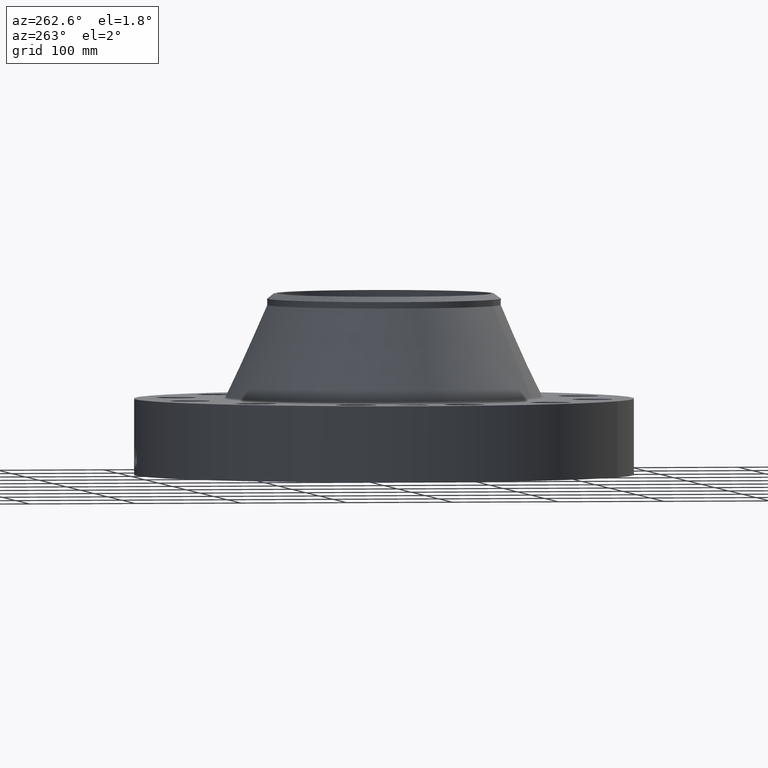
[diagram: clean part render]
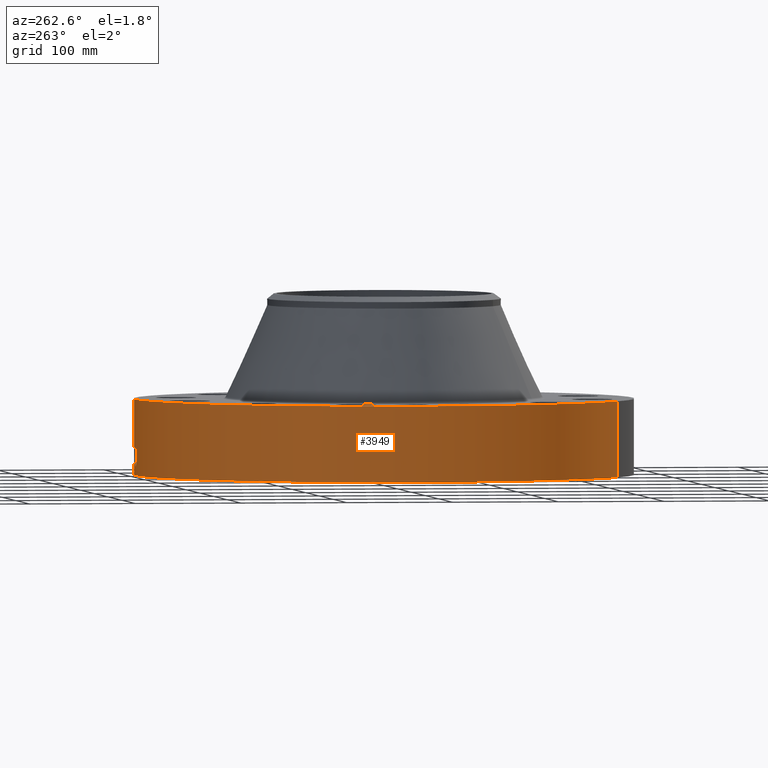
[diagram: same view with one face highlighted and labeled with its STEP entity id]
A machine part, auxiliary view. The second image highlights one B-rep face of the part: STEP entity #3949.
In plain terms, the highlighted cylindrical surface (partial cylindrical patch) has radius 234.95 mm, axis along (0, 0, -1).
Its self-contained STEP definition (entity closure, byte-faithful):
#2927=AXIS2_PLACEMENT_3D('Circle Axis2P3D',#2925,#2926,$) ;
#3835=AXIS2_PLACEMENT_3D('Cylinder Axis2P3D',#3832,#3833,#3834) ;
#3839=AXIS2_PLACEMENT_3D('Circle Axis2P3D',#3837,#3838,$) ;
#2920=CARTESIAN_POINT('Vertex',(4.43468623211,8.11763869752,2.81200000001)) ;
#2922=CARTESIAN_POINT('Vertex',(-4.43468623211,-8.11763869752,2.81200000001)) ;
#2925=CARTESIAN_POINT('Axis2P3D Location',(0.,0.,2.81200000001)) ;
#3832=CARTESIAN_POINT('Axis2P3D Location',(0.,0.,3.34600000001)) ;
#3837=CARTESIAN_POINT('Axis2P3D Location',(0.,0.,1.1189649382E-015)) ;
#3841=CARTESIAN_POINT('Vertex',(-4.43468623211,-8.11763869752,1.1189649382E-015)) ;
#3843=CARTESIAN_POINT('Vertex',(4.43468623211,8.11763869752,1.1189649382E-015)) ;
#3846=CARTESIAN_POINT('Line Origine',(-4.43468623211,-8.11763869752,1.40600000001)) ;
#3851=CARTESIAN_POINT('Line Origine',(4.43468623211,8.11763869752,1.40600000001)) ;
#3863=CARTESIAN_POINT('Control Point',(-0.0577125961647,9.24981995808,1.09937874994)) ;
#3864=CARTESIAN_POINT('Control Point',(-0.0388833608077,9.24993743973,1.10249288476)) ;
#3865=CARTESIAN_POINT('Control Point',(-0.0198013897596,9.24999849469,1.10407982415)) ;
#3866=CARTESIAN_POINT('Control Point',(-0.000716156149236,9.24999997231,1.10411849907)) ;
#3867=CARTESIAN_POINT('Vertex',(-0.0576991467382,9.24982029975,1.09938125797)) ;
#3869=CARTESIAN_POINT('Vertex',(-0.000716038479745,9.24999997232,1.10411850952)) ;
#3873=CARTESIAN_POINT('Control Point',(-0.0576990432169,9.24982004263,1.09938068475)) ;
#3874=CARTESIAN_POINT('Control Point',(-0.0972391380561,9.24957339722,1.09460359016)) ;
#3875=CARTESIAN_POINT('Control Point',(-0.136042516295,9.24906823357,1.08261771386)) ;
#3876=CARTESIAN_POINT('Control Point',(-0.171684024295,9.24840659771,1.06429687549)) ;
#3877=CARTESIAN_POINT('Vertex',(-0.171684024295,9.24840659771,1.06429687549)) ;
#3881=CARTESIAN_POINT('Control Point',(-0.0303581087273,9.24995018289,0.341140537551)) ;
#3882=CARTESIAN_POINT('Control Point',(-0.0866897584974,9.2497653038,0.348299310546)) ;
#3883=CARTESIAN_POINT('Control Point',(-0.141430115601,9.24915682216,0.365910087449)) ;
#3884=CARTESIAN_POINT('Control Point',(-0.191853008815,9.2481803912,0.393474885052)) ;
#3885=CARTESIAN_POINT('Control Point',(-0.265091257344,9.24632230319,0.452891927386)) ;
#3886=CARTESIAN_POINT('Control Point',(-0.317152117048,9.24459179649,0.529282466423)) ;
#3887=CARTESIAN_POINT('Control Point',(-0.334231000889,9.24397520688,0.561953293361)) ;
#3888=CARTESIAN_POINT('Control Point',(-0.368164840035,9.24269550023,0.650206623084)) ;
#3889=CARTESIAN_POINT('Control Point',(-0.375212250425,9.24237778093,0.744443133943)) ;
#3890=CARTESIAN_POINT('Control Point',(-0.369077403117,9.24264042873,0.801998466236)) ;
#3891=CARTESIAN_POINT('Control Point',(-0.339634178712,9.24384245099,0.901085591186)) ;
#3892=CARTESIAN_POINT('Control Point',(-0.280074262204,9.2458215954,0.984223833656)) ;
#3893=CARTESIAN_POINT('Control Point',(-0.248105873876,9.24677344311,1.01684017513)) ;
#3894=CARTESIAN_POINT('Control Point',(-0.21151349785,9.24766721798,1.0438232927)) ;
#3895=CARTESIAN_POINT('Control Point',(-0.171684024295,9.24840659771,1.06429687549)) ;
#3896=CARTESIAN_POINT('Vertex',(-0.0303581087272,9.24995018289,0.341140537551)) ;
#3900=CARTESIAN_POINT('Control Point',(-0.0303581087273,9.24995018289,0.341140537551)) ;
#3901=CARTESIAN_POINT('Control Point',(-0.020233011113,9.24998341321,0.340867615171)) ;
#3902=CARTESIAN_POINT('Control Point',(-0.0101025865813,9.25000000302,0.340945815472)) ;
#3903=CARTESIAN_POINT('Control Point',(2.72878351164E-006,9.25000000004,0.341374667805)) ;
#3904=CARTESIAN_POINT('Vertex',(2.72878353618E-006,9.25000000004,0.341374667805)) ;
#3908=CARTESIAN_POINT('Control Point',(0.193198543476,9.24798217578,0.396362555986)) ;
#3909=CARTESIAN_POINT('Control Point',(0.149227382229,9.2489007723,0.371425951044)) ;
#3910=CARTESIAN_POINT('Control Point',(0.101161803739,9.24962696138,0.35356672624)) ;
#3911=CARTESIAN_POINT('Control Point',(0.0508219078913,9.24999998504,0.343531348827)) ;
#3912=CARTESIAN_POINT('Control Point',(2.72878352805E-006,9.25000000004,0.341374667805)) ;
#3913=CARTESIAN_POINT('Vertex',(0.193198543476,9.24798217578,0.396362555986)) ;
#3917=CARTESIAN_POINT('Control Point',(0.193198543476,9.24798217578,0.396362555986)) ;
#3918=CARTESIAN_POINT('Control Point',(0.222182253513,9.24737668039,0.412799587067)) ;
#3919=CARTESIAN_POINT('Control Point',(0.249503039003,9.24669232964,0.432118782466)) ;
#3920=CARTESIAN_POINT('Control Point',(0.27475602424,9.24596347858,0.454146093832)) ;
#3921=CARTESIAN_POINT('Control Point',(0.341566372645,9.24382713184,0.525930911389)) ;
#3922=CARTESIAN_POINT('Control Point',(0.384141031167,9.24205912221,0.615687982996)) ;
#3923=CARTESIAN_POINT('Control Point',(0.399122340637,9.2413711073,0.680114143546)) ;
#3924=CARTESIAN_POINT('Control Point',(0.399880486978,9.24137894225,0.794466480263)) ;
#3925=CARTESIAN_POINT('Control Point',(0.359702757099,9.24303009304,0.899211226192)) ;
#3926=CARTESIAN_POINT('Control Point',(0.3354039017,9.24398189379,0.940688840859)) ;
#3927=CARTESIAN_POINT('Control Point',(0.266593442439,9.24636786144,1.02431007212)) ;
#3928=CARTESIAN_POINT('Control Point',(0.173832340737,9.24860314802,1.07884677027)) ;
#3929=CARTESIAN_POINT('Control Point',(0.11691293498,9.24954506219,1.0986182987)) ;
#3930=CARTESIAN_POINT('Control Point',(0.0580168751513,9.25000016226,1.10699864516)) ;
#3931=CARTESIAN_POINT('Control Point',(-2.58579355524E-005,9.25,1.10415298432)) ;
#3932=CARTESIAN_POINT('Vertex',(-2.58579355387E-005,9.25,1.10415298432)) ;
#3936=CARTESIAN_POINT('Control Point',(-0.000716038469635,9.24999997232,1.1041185095)) ;
#3937=CARTESIAN_POINT('Control Point',(-0.000370972295635,9.24999999904,1.10413606441)) ;
#3938=CARTESIAN_POINT('Control Point',(-2.58579412438E-005,9.25,1.10415298432)) ;
#2926=DIRECTION('Axis2P3D Direction',(0.,0.,-0.0393700787402)) ;
#3833=DIRECTION('Axis2P3D Direction',(0.,0.,-0.0393700787402)) ;
#3834=DIRECTION('Axis2P3D XDirection',(0.0188750212049,0.0345504945626,0.)) ;
#3838=DIRECTION('Axis2P3D Direction',(0.,0.,-0.0393700787402)) ;
#3847=DIRECTION('Vector Direction',(0.,0.,-0.0393700787402)) ;
#3852=DIRECTION('Vector Direction',(0.,0.,-0.0393700787402)) ;
#3848=VECTOR('Line Direction',#3847,0.0393700787402) ;
#3853=VECTOR('Line Direction',#3852,0.0393700787402) ;
#3857=ORIENTED_EDGE('',*,*,#3845,.F.) ;
#3858=ORIENTED_EDGE('',*,*,#3850,.T.) ;
#3859=ORIENTED_EDGE('',*,*,#2929,.T.) ;
#3860=ORIENTED_EDGE('',*,*,#3855,.F.) ;
#3941=ORIENTED_EDGE('',*,*,#3871,.F.) ;
#3942=ORIENTED_EDGE('',*,*,#3879,.T.) ;
#3943=ORIENTED_EDGE('',*,*,#3898,.F.) ;
#3944=ORIENTED_EDGE('',*,*,#3906,.T.) ;
#3945=ORIENTED_EDGE('',*,*,#3915,.F.) ;
#3946=ORIENTED_EDGE('',*,*,#3934,.T.) ;
#3947=ORIENTED_EDGE('',*,*,#3939,.F.) ;
#3948=FACE_BOUND('',#3940,.T.) ;
#3949=ADVANCED_FACE('PartBody',(#3861,#3948),#3836,.T.) ;
#3862=B_SPLINE_CURVE_WITH_KNOTS('',3,(#3863,#3864,#3865,#3866),.UNSPECIFIED.,.F.,.U.,(4,4),(4.4039962397,6.52132955331),.UNSPECIFIED.) ;
#3872=B_SPLINE_CURVE_WITH_KNOTS('',3,(#3873,#3874,#3875,#3876),.UNSPECIFIED.,.F.,.U.,(4,4),(0.,4.47506329857),.UNSPECIFIED.) ;
#3880=B_SPLINE_CURVE_WITH_KNOTS('',5,(#3881,#3882,#3883,#3884,#3885,#3886,#3887,#3888,#3889,#3890,#3891,#3892,#3893,#3894,#3895),.UNSPECIFIED.,.F.,.U.,(6,3,3,3,6),(0.,9.86881378976,16.4431622501,26.8471298651,35.1819537901),.UNSPECIFIED.) ;
#3899=B_SPLINE_CURVE_WITH_KNOTS('',3,(#3900,#3901,#3902,#3903),.UNSPECIFIED.,.F.,.U.,(4,4),(0.,1.05612363688),.UNSPECIFIED.) ;
#3907=B_SPLINE_CURVE_WITH_KNOTS('',4,(#3908,#3909,#3910,#3911,#3912),.UNSPECIFIED.,.F.,.U.,(5,5),(0.,7.08159807625),.UNSPECIFIED.) ;
#3916=B_SPLINE_CURVE_WITH_KNOTS('',5,(#3917,#3918,#3919,#3920,#3921,#3922,#3923,#3924,#3925,#3926,#3927,#3928,#3929,#3930,#3931),.UNSPECIFIED.,.F.,.U.,(6,3,3,3,6),(0.,5.83481822549,17.1123890845,25.588450645,36.4378412032),.UNSPECIFIED.) ;
#3935=B_SPLINE_CURVE_WITH_KNOTS('',2,(#3936,#3937,#3938),.UNSPECIFIED.,.F.,.U.,(3,3),(1.04310310359,1.06890671688),.UNSPECIFIED.) ;
#2928=CIRCLE('generated circle',#2927,9.25000000004) ;
#3840=CIRCLE('generated circle',#3839,9.25000000004) ;
#3836=CYLINDRICAL_SURFACE('generated cylinder',#3835,9.25000000004) ;
#2929=EDGE_CURVE('',#2923,#2921,#2928,.T.) ;
#3845=EDGE_CURVE('',#3842,#3844,#3840,.T.) ;
#3850=EDGE_CURVE('',#3842,#2923,#3849,.F.) ;
#3855=EDGE_CURVE('',#3844,#2921,#3854,.F.) ;
#3871=EDGE_CURVE('',#3868,#3870,#3862,.T.) ;
#3879=EDGE_CURVE('',#3868,#3878,#3872,.T.) ;
#3898=EDGE_CURVE('',#3897,#3878,#3880,.T.) ;
#3906=EDGE_CURVE('',#3897,#3905,#3899,.T.) ;
#3915=EDGE_CURVE('',#3914,#3905,#3907,.T.) ;
#3934=EDGE_CURVE('',#3914,#3933,#3916,.T.) ;
#3939=EDGE_CURVE('',#3870,#3933,#3935,.T.) ;
#3856=EDGE_LOOP('',(#3857,#3858,#3859,#3860)) ;
#3940=EDGE_LOOP('',(#3941,#3942,#3943,#3944,#3945,#3946,#3947)) ;
#3861=FACE_OUTER_BOUND('',#3856,.T.) ;
#3849=LINE('Line',#3846,#3848) ;
#3854=LINE('Line',#3851,#3853) ;
#2921=VERTEX_POINT('',#2920) ;
#2923=VERTEX_POINT('',#2922) ;
#3842=VERTEX_POINT('',#3841) ;
#3844=VERTEX_POINT('',#3843) ;
#3868=VERTEX_POINT('',#3867) ;
#3870=VERTEX_POINT('',#3869) ;
#3878=VERTEX_POINT('',#3877) ;
#3897=VERTEX_POINT('',#3896) ;
#3905=VERTEX_POINT('',#3904) ;
#3914=VERTEX_POINT('',#3913) ;
#3933=VERTEX_POINT('',#3932) ;